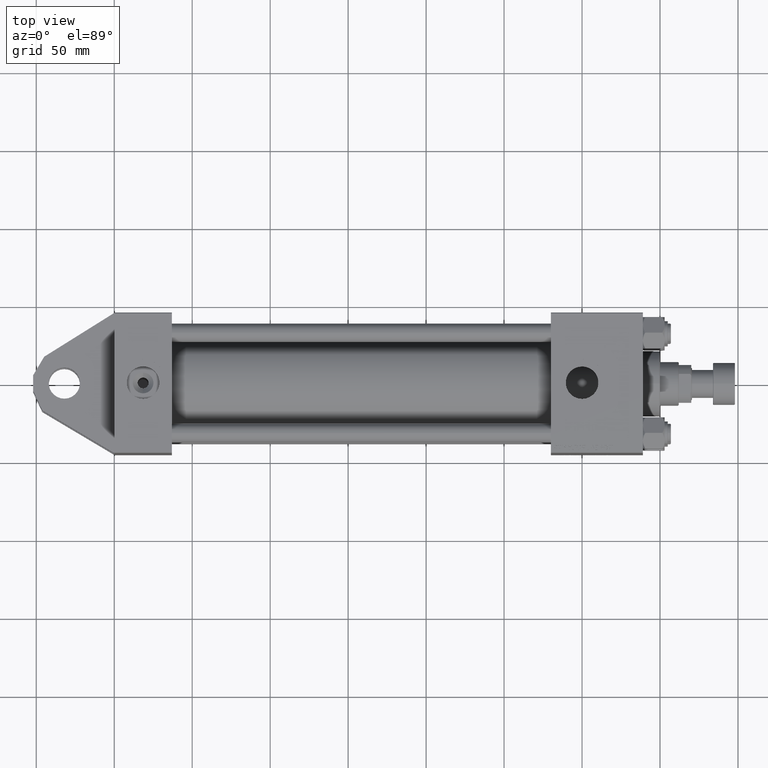
[diagram: clean part render]
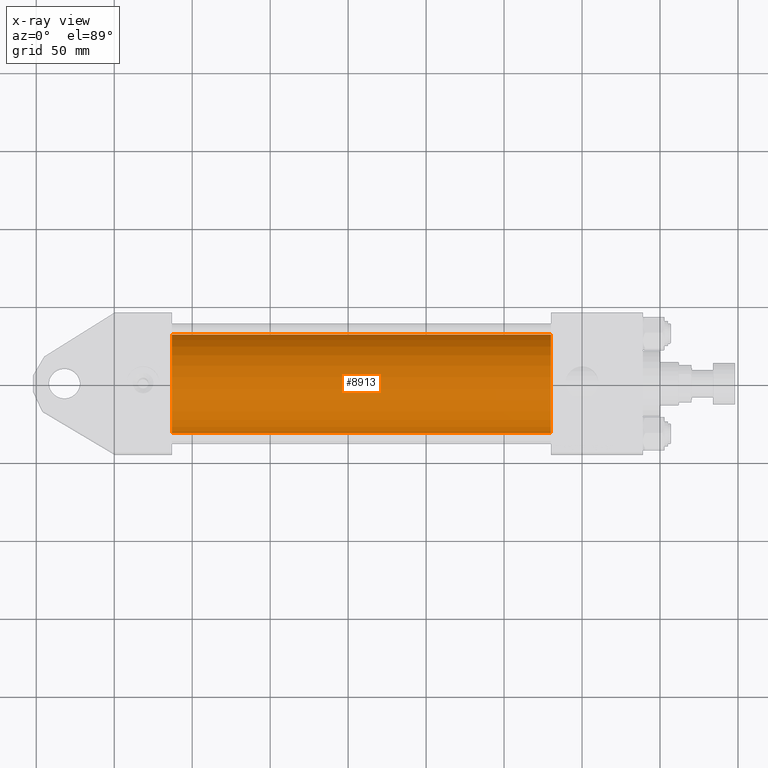
[diagram: x-ray — body ghosted, one internal face saturated and labeled with its STEP entity id]
A machine part, top view, then the same camera in x-ray: the body is ghosted and one INTERNAL B-rep face — a face not visible from any outside direction — is saturated and labeled: STEP entity #8913.
In plain terms, the highlighted cylindrical surface (partial cylindrical patch) has radius 31.5 mm, axis along (-1, -0, 0).
Its self-contained STEP definition (entity closure, byte-faithful):
#175 = VERTEX_POINT ( 'NONE', #6769 ) ;
#1633 = EDGE_LOOP ( 'NONE', ( #11868, #37477, #52172, #25458 ) ) ;
#2172 = VECTOR ( 'NONE', #22256, 1000.000000000000000 ) ;
#2205 = DIRECTION ( 'NONE',  ( 1.000000000000000000, 0.000000000000000000, 0.000000000000000000 ) ) ;
#2690 = CARTESIAN_POINT ( 'NONE',  ( 37.00000000000000000, -3.469446951953614189E-15, 31.50000000000000000 ) ) ;
#2851 = EDGE_CURVE ( 'NONE', #25304, #19982, #23244, .T. ) ;
#3814 = VERTEX_POINT ( 'NONE', #24299 ) ;
#4111 = AXIS2_PLACEMENT_3D ( 'NONE', #19914, #36027, #52159 ) ;
#6146 = CARTESIAN_POINT ( 'NONE',  ( 279.9999999999999432, -3.469446951953614189E-15, 31.50000000000000000 ) ) ;
#6769 = CARTESIAN_POINT ( 'NONE',  ( 279.9999999999999432, -3.469446951953614189E-15, 31.50000000000000000 ) ) ;
#8913 = ADVANCED_FACE ( 'NONE', ( #50251 ), #17751, .F. ) ;
#10155 = CARTESIAN_POINT ( 'NONE',  ( 279.9999999999999432, 3.881904653605483521E-16, -31.50000000000000000 ) ) ;
#10390 = LINE ( 'NONE', #6146, #2172 ) ;
#11287 = EDGE_CURVE ( 'NONE', #3814, #19982, #33653, .T. ) ;
#11457 = AXIS2_PLACEMENT_3D ( 'NONE', #29664, #2205, #17804 ) ;
#11868 = ORIENTED_EDGE ( 'NONE', *, *, #14644, .T. ) ;
#13777 = DIRECTION ( 'NONE',  ( 0.000000000000000000, 0.000000000000000000, 1.000000000000000000 ) ) ;
#14644 = EDGE_CURVE ( 'NONE', #175, #3814, #20966, .T. ) ;
#15745 = AXIS2_PLACEMENT_3D ( 'NONE', #33850, #49988, #13777 ) ;
#17751 = CYLINDRICAL_SURFACE ( 'NONE', #15745, 31.50000000000000000 ) ;
#17804 = DIRECTION ( 'NONE',  ( 0.000000000000000000, 0.000000000000000000, -1.000000000000000000 ) ) ;
#19914 = CARTESIAN_POINT ( 'NONE',  ( 279.9999999999999432, -3.469446951953614189E-15, 0.000000000000000000 ) ) ;
#19982 = VERTEX_POINT ( 'NONE', #35291 ) ;
#20966 = CIRCLE ( 'NONE', #4111, 31.50000000000000000 ) ;
#22256 = DIRECTION ( 'NONE',  ( -1.000000000000000000, -0.000000000000000000, -0.000000000000000000 ) ) ;
#22540 = DIRECTION ( 'NONE',  ( -1.000000000000000000, -0.000000000000000000, -0.000000000000000000 ) ) ;
#23244 = CIRCLE ( 'NONE', #11457, 31.50000000000000000 ) ;
#24299 = CARTESIAN_POINT ( 'NONE',  ( 279.9999999999999432, 3.881904653605483521E-16, -31.50000000000000000 ) ) ;
#25304 = VERTEX_POINT ( 'NONE', #2690 ) ;
#25458 = ORIENTED_EDGE ( 'NONE', *, *, #40748, .F. ) ;
#29664 = CARTESIAN_POINT ( 'NONE',  ( 37.00000000000000000, -3.469446951953614189E-15, 0.000000000000000000 ) ) ;
#33653 = LINE ( 'NONE', #10155, #44483 ) ;
#33850 = CARTESIAN_POINT ( 'NONE',  ( 279.9999999999999432, -3.469446951953614189E-15, 0.000000000000000000 ) ) ;
#35291 = CARTESIAN_POINT ( 'NONE',  ( 37.00000000000000000, 3.881904653605483521E-16, -31.50000000000000000 ) ) ;
#36027 = DIRECTION ( 'NONE',  ( 1.000000000000000000, 0.000000000000000000, 0.000000000000000000 ) ) ;
#37477 = ORIENTED_EDGE ( 'NONE', *, *, #11287, .T. ) ;
#40748 = EDGE_CURVE ( 'NONE', #175, #25304, #10390, .T. ) ;
#44483 = VECTOR ( 'NONE', #22540, 1000.000000000000000 ) ;
#49988 = DIRECTION ( 'NONE',  ( -1.000000000000000000, -0.000000000000000000, -0.000000000000000000 ) ) ;
#50251 = FACE_OUTER_BOUND ( 'NONE', #1633, .T. ) ;
#52159 = DIRECTION ( 'NONE',  ( 0.000000000000000000, 0.000000000000000000, -1.000000000000000000 ) ) ;
#52172 = ORIENTED_EDGE ( 'NONE', *, *, #2851, .F. ) ;